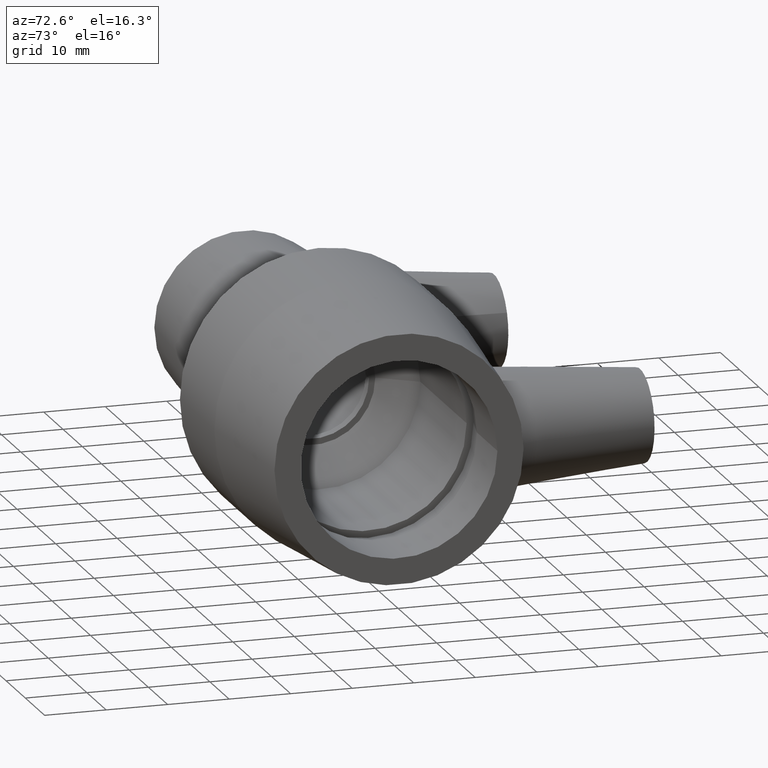
[diagram: clean part render]
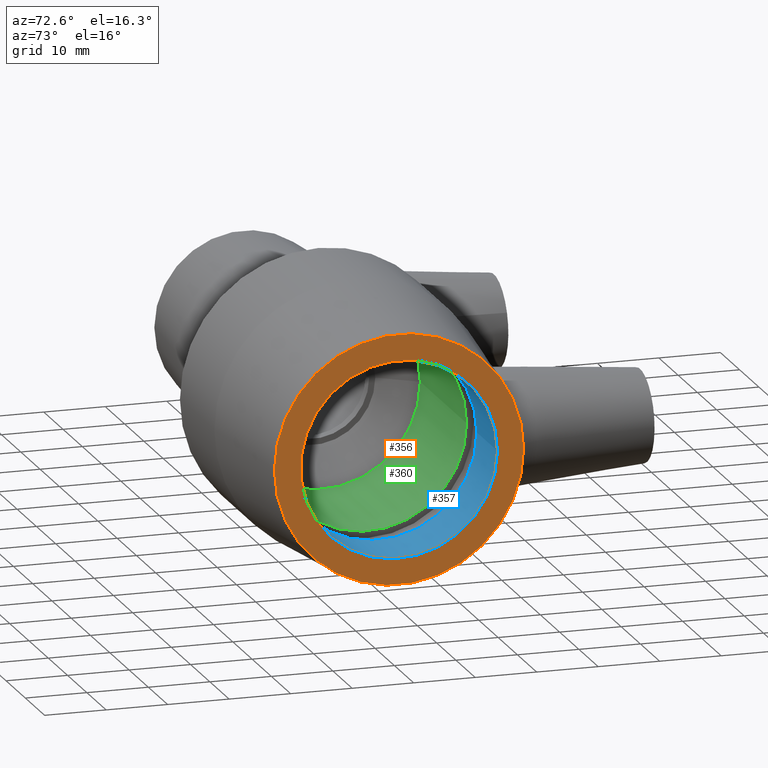
[diagram: same view with three faces highlighted in distinct colors, each labeled with its STEP entity id]
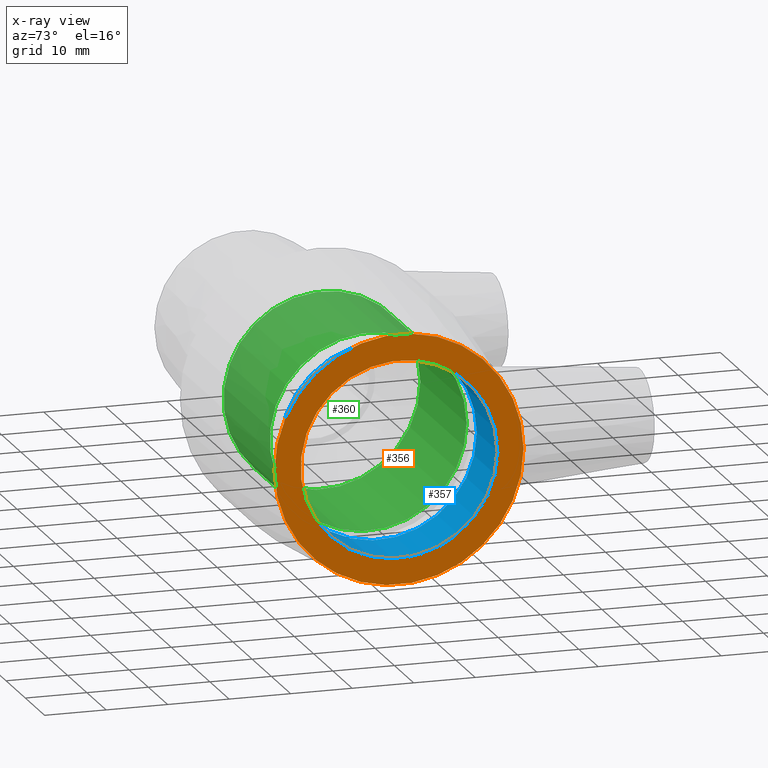
[diagram: x-ray of the same camera — body ghosted, the three highlighted faces saturated]
A machine part, auxiliary view with three faces highlighted in distinct colors.
The next image is the same camera in x-ray (body ghosted, the three faces saturated) — at least one of them is partly hidden behind the body in this view.
Their STEP definitions:

[orange] entity #356 — the highlighted planar face has unit normal (1, 0, 0).
#43=FACE_BOUND('',#134,.T.);
#86=FACE_OUTER_BOUND('',#133,.T.);
#133=EDGE_LOOP('',(#295));
#134=EDGE_LOOP('',(#296));
#178=CIRCLE('',#405,20.25);
#179=CIRCLE('',#407,16.);
#210=VERTEX_POINT('',#695);
#211=VERTEX_POINT('',#698);
#244=EDGE_CURVE('',#210,#210,#178,.T.);
#245=EDGE_CURVE('',#211,#211,#179,.T.);
#295=ORIENTED_EDGE('',*,*,#244,.T.);
#296=ORIENTED_EDGE('',*,*,#245,.F.);
#333=PLANE('',#406);
#356=ADVANCED_FACE('',(#86,#43),#333,.T.);
#405=AXIS2_PLACEMENT_3D('',#696,#501,#502);
#406=AXIS2_PLACEMENT_3D('',#697,#503,#504);
#407=AXIS2_PLACEMENT_3D('',#699,#505,#506);
#501=DIRECTION('center_axis',(1.,1.83697019872103E-16,0.));
#502=DIRECTION('ref_axis',(0.,0.,-1.));
#503=DIRECTION('center_axis',(1.,1.83697019872103E-16,0.));
#504=DIRECTION('ref_axis',(0.,0.,-1.));
#505=DIRECTION('center_axis',(1.,1.83697019872103E-16,0.));
#506=DIRECTION('ref_axis',(0.,0.,-1.));
#695=CARTESIAN_POINT('',(40.5,20.25,0.));
#696=CARTESIAN_POINT('Origin',(40.5,1.48794586096403E-14,0.));
#697=CARTESIAN_POINT('Origin',(40.5,16.,0.));
#698=CARTESIAN_POINT('',(40.5,16.,0.));
#699=CARTESIAN_POINT('Origin',(40.5,1.48794586096403E-14,0.));

[blue] entity #357 — the highlighted cylindrical surface (bore or boss wall) has radius 16 mm, axis along (1, 0, 0).
#44=FACE_BOUND('',#136,.T.);
#64=CYLINDRICAL_SURFACE('',#408,16.);
#87=FACE_OUTER_BOUND('',#135,.T.);
#135=EDGE_LOOP('',(#297));
#136=EDGE_LOOP('',(#298));
#179=CIRCLE('',#407,16.);
#180=CIRCLE('',#409,16.);
#211=VERTEX_POINT('',#698);
#212=VERTEX_POINT('',#701);
#245=EDGE_CURVE('',#211,#211,#179,.T.);
#246=EDGE_CURVE('',#212,#212,#180,.T.);
#297=ORIENTED_EDGE('',*,*,#246,.F.);
#298=ORIENTED_EDGE('',*,*,#245,.T.);
#357=ADVANCED_FACE('',(#87,#44),#64,.F.);
#407=AXIS2_PLACEMENT_3D('',#699,#505,#506);
#408=AXIS2_PLACEMENT_3D('',#700,#507,#508);
#409=AXIS2_PLACEMENT_3D('',#702,#509,#510);
#505=DIRECTION('center_axis',(1.,1.83697019872103E-16,0.));
#506=DIRECTION('ref_axis',(0.,0.,-1.));
#507=DIRECTION('center_axis',(1.,1.83697019872103E-16,0.));
#508=DIRECTION('ref_axis',(-1.47098614156963E-16,1.,0.));
#509=DIRECTION('center_axis',(1.,1.83697019872103E-16,0.));
#510=DIRECTION('ref_axis',(0.,0.,-1.));
#698=CARTESIAN_POINT('',(40.5,16.,0.));
#699=CARTESIAN_POINT('Origin',(40.5,1.48794586096403E-14,0.));
#700=CARTESIAN_POINT('Origin',(35.1666666666667,1.38997411703225E-14,0.));
#701=CARTESIAN_POINT('',(29.8333333333333,16.,0.));
#702=CARTESIAN_POINT('Origin',(29.8333333333333,1.29200237310046E-14,0.));

[green] entity #360 — the highlighted cylindrical surface (bore or boss wall) has radius 16 mm, axis along (1, 0, 0).
#47=FACE_BOUND('',#142,.T.);
#65=CYLINDRICAL_SURFACE('',#414,16.);
#90=FACE_OUTER_BOUND('',#141,.T.);
#141=EDGE_LOOP('',(#303));
#142=EDGE_LOOP('',(#304));
#182=CIRCLE('',#413,16.);
#183=CIRCLE('',#415,16.);
#214=VERTEX_POINT('',#707);
#215=VERTEX_POINT('',#710);
#248=EDGE_CURVE('',#214,#214,#182,.T.);
#249=EDGE_CURVE('',#215,#215,#183,.T.);
#303=ORIENTED_EDGE('',*,*,#249,.F.);
#304=ORIENTED_EDGE('',*,*,#248,.T.);
#360=ADVANCED_FACE('',(#90,#47),#65,.F.);
#413=AXIS2_PLACEMENT_3D('',#708,#517,#518);
#414=AXIS2_PLACEMENT_3D('',#709,#519,#520);
#415=AXIS2_PLACEMENT_3D('',#711,#521,#522);
#517=DIRECTION('center_axis',(1.,1.83697019872103E-16,0.));
#518=DIRECTION('ref_axis',(0.,0.,-1.));
#519=DIRECTION('center_axis',(1.,1.83697019872103E-16,0.));
#520=DIRECTION('ref_axis',(-1.47098614156963E-16,1.,0.));
#521=DIRECTION('center_axis',(1.,1.83697019872103E-16,0.));
#522=DIRECTION('ref_axis',(0.,0.,-1.));
#707=CARTESIAN_POINT('',(24.5,16.,0.));
#708=CARTESIAN_POINT('Origin',(24.5,1.19403062916867E-14,0.));
#709=CARTESIAN_POINT('Origin',(12.5,9.73594205322145E-15,0.));
#710=CARTESIAN_POINT('',(0.49999999999998,16.,0.));
#711=CARTESIAN_POINT('Origin',(0.499999999999985,7.53157781475622E-15,0.));